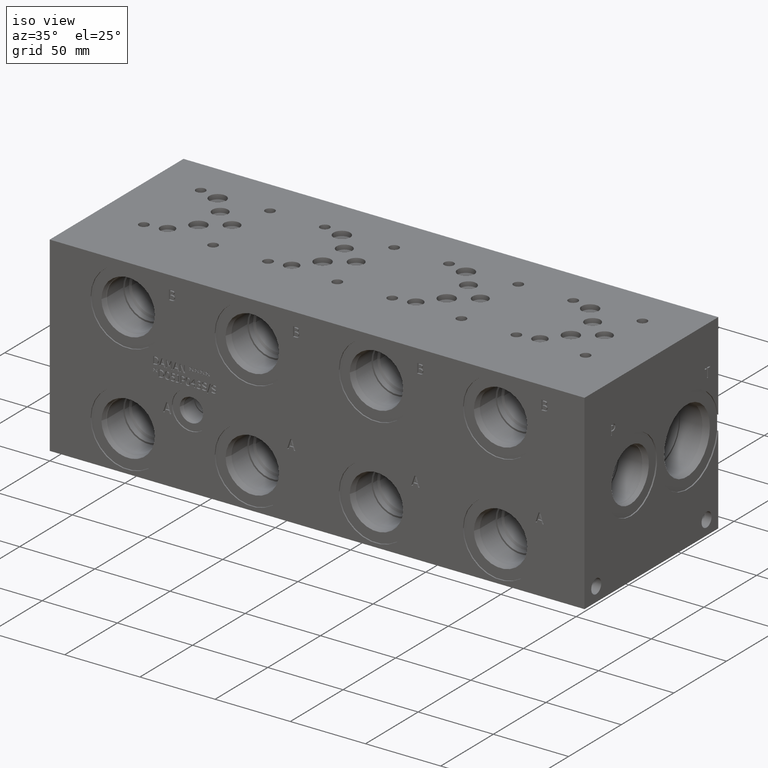
[diagram: clean part render]
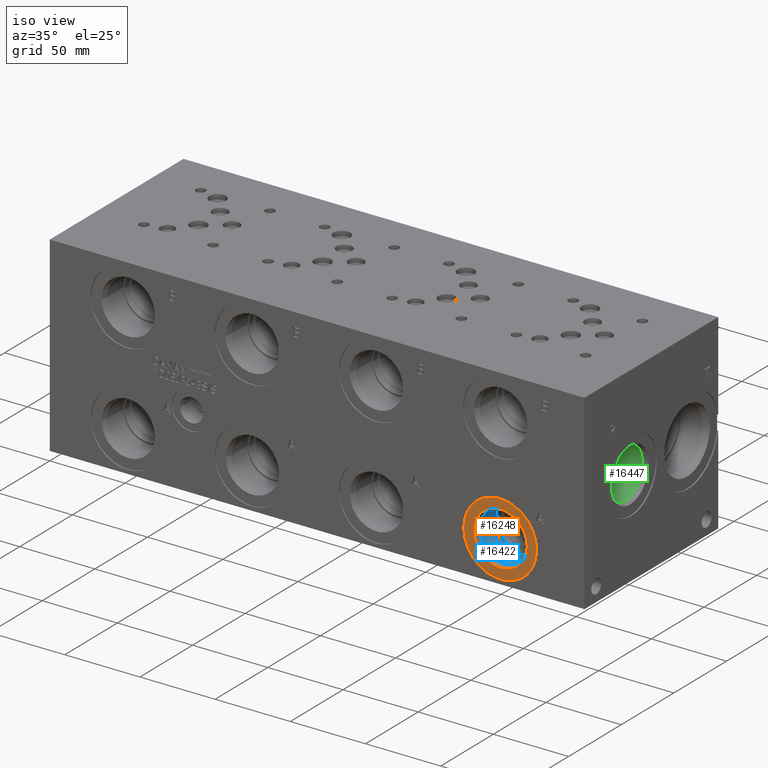
[diagram: same view with three faces highlighted in distinct colors, each labeled with its STEP entity id]
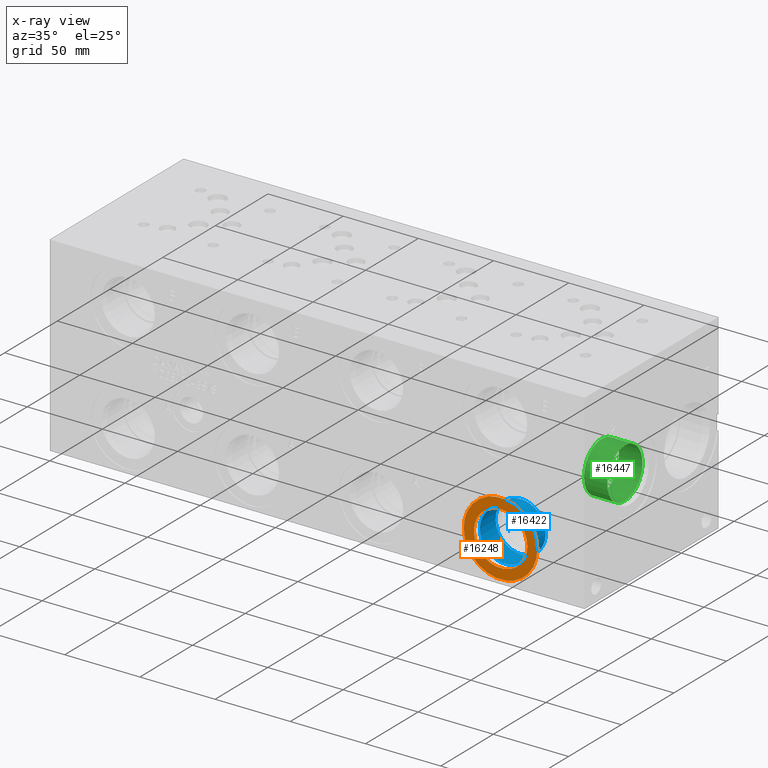
[diagram: x-ray of the same camera — body ghosted, the three highlighted faces saturated]
A machine part, iso view with three faces highlighted in distinct colors.
The next image is the same camera in x-ray (body ghosted, the three faces saturated) — at least one of them is partly hidden behind the body in this view.
Their STEP definitions:

[orange] entity #16248 — the highlighted planar face has unit normal (0, -1, 0).
#586=CIRCLE('',#17075,24.4856);
#587=CIRCLE('',#17076,24.4856);
#588=CIRCLE('',#17077,17.7546);
#1409=FACE_BOUND('',#3062,.T.);
#2116=FACE_OUTER_BOUND('',#3061,.T.);
#3061=EDGE_LOOP('',(#13459,#13460));
#3062=EDGE_LOOP('',(#13461));
#7363=VERTEX_POINT('',#27430);
#7364=VERTEX_POINT('',#27431);
#7365=VERTEX_POINT('',#27434);
#9506=EDGE_CURVE('',#7363,#7364,#586,.T.);
#9507=EDGE_CURVE('',#7364,#7363,#587,.T.);
#9508=EDGE_CURVE('',#7365,#7365,#588,.T.);
#13459=ORIENTED_EDGE('',*,*,#9506,.T.);
#13460=ORIENTED_EDGE('',*,*,#9507,.T.);
#13461=ORIENTED_EDGE('',*,*,#9508,.F.);
#15030=PLANE('',#17074);
#16248=ADVANCED_FACE('',(#2116,#1409),#15030,.T.);
#17074=AXIS2_PLACEMENT_3D('',#27429,#20047,#20048);
#17075=AXIS2_PLACEMENT_3D('',#27432,#20049,#20050);
#17076=AXIS2_PLACEMENT_3D('',#27433,#20051,#20052);
#17077=AXIS2_PLACEMENT_3D('',#27435,#20053,#20054);
#20047=DIRECTION('center_axis',(0.,-1.,0.));
#20048=DIRECTION('ref_axis',(1.,0.,0.));
#20049=DIRECTION('center_axis',(0.,-1.,0.));
#20050=DIRECTION('ref_axis',(1.,0.,0.));
#20051=DIRECTION('center_axis',(0.,-1.,0.));
#20052=DIRECTION('ref_axis',(1.,0.,0.));
#20053=DIRECTION('center_axis',(0.,-1.,0.));
#20054=DIRECTION('ref_axis',(1.,0.,0.));
#27429=CARTESIAN_POINT('Origin',(299.2374,0.7874,26.9875));
#27430=CARTESIAN_POINT('',(323.723,0.7874,26.9875));
#27431=CARTESIAN_POINT('',(274.7518,0.7874,26.9875));
#27432=CARTESIAN_POINT('Origin',(299.2374,0.7874,26.9875));
#27433=CARTESIAN_POINT('Origin',(299.2374,0.7874,26.9875));
#27434=CARTESIAN_POINT('',(281.4828,0.7874,26.9875));
#27435=CARTESIAN_POINT('Origin',(299.2374,0.7874,26.9875));

[blue] entity #16422 — the highlighted cylindrical surface (bore or boss wall) has radius 16.67 mm, axis along (0, -1, 0).
#236=CYLINDRICAL_SURFACE('',#17537,16.67);
#584=CIRCLE('',#17071,16.67);
#872=CIRCLE('',#17534,16.67);
#873=CIRCLE('',#17535,16.67);
#2290=FACE_OUTER_BOUND('',#3265,.T.);
#3265=EDGE_LOOP('',(#14272,#14273,#14274,#14275,#14276));
#4731=LINE('',#28368,#6142);
#6142=VECTOR('',#21119,16.67);
#7360=VERTEX_POINT('',#27421);
#7691=VERTEX_POINT('',#28361);
#7692=VERTEX_POINT('',#28362);
#9503=EDGE_CURVE('',#7360,#7360,#584,.T.);
#9936=EDGE_CURVE('',#7691,#7692,#872,.T.);
#9937=EDGE_CURVE('',#7692,#7691,#873,.T.);
#9939=EDGE_CURVE('',#7360,#7692,#4731,.T.);
#14272=ORIENTED_EDGE('',*,*,#9503,.T.);
#14273=ORIENTED_EDGE('',*,*,#9939,.T.);
#14274=ORIENTED_EDGE('',*,*,#9936,.F.);
#14275=ORIENTED_EDGE('',*,*,#9937,.F.);
#14276=ORIENTED_EDGE('',*,*,#9939,.F.);
#16422=ADVANCED_FACE('',(#2290),#236,.F.);
#17071=AXIS2_PLACEMENT_3D('',#27423,#20040,#20041);
#17534=AXIS2_PLACEMENT_3D('',#28363,#21111,#21112);
#17535=AXIS2_PLACEMENT_3D('',#28364,#21113,#21114);
#17537=AXIS2_PLACEMENT_3D('',#28367,#21117,#21118);
#20040=DIRECTION('center_axis',(0.,-1.,0.));
#20041=DIRECTION('ref_axis',(1.,0.,0.));
#21111=DIRECTION('center_axis',(0.,-1.,0.));
#21112=DIRECTION('ref_axis',(1.,0.,0.));
#21113=DIRECTION('center_axis',(0.,-1.,0.));
#21114=DIRECTION('ref_axis',(1.,0.,0.));
#21117=DIRECTION('center_axis',(0.,-1.,0.));
#21118=DIRECTION('ref_axis',(1.,0.,0.));
#21119=DIRECTION('',(0.,1.,0.));
#27421=CARTESIAN_POINT('',(282.5674,4.8427123058892,26.9875));
#27423=CARTESIAN_POINT('Origin',(299.2374,4.8427123058892,26.9875));
#28361=CARTESIAN_POINT('',(315.9074,19.8374,26.9875));
#28362=CARTESIAN_POINT('',(282.5674,19.8374,26.9875));
#28363=CARTESIAN_POINT('Origin',(299.2374,19.8374,26.9875));
#28364=CARTESIAN_POINT('Origin',(299.2374,19.8374,26.9875));
#28367=CARTESIAN_POINT('Origin',(299.2374,9.9187,26.9875));
#28368=CARTESIAN_POINT('',(282.5674,9.9187,26.9875));

[green] entity #16447 — the highlighted cylindrical surface (bore or boss wall) has radius 16.67 mm, axis along (1, 0, 0).
#247=CYLINDRICAL_SURFACE('',#17597,16.67);
#907=CIRCLE('',#17594,16.67);
#908=CIRCLE('',#17595,16.67);
#910=CIRCLE('',#17598,16.67);
#911=CIRCLE('',#17599,16.67);
#2315=FACE_OUTER_BOUND('',#3294,.T.);
#3294=EDGE_LOOP('',(#14390,#14391,#14392,#14393,#14394,#14395));
#4752=LINE('',#28489,#6163);
#6163=VECTOR('',#21262,16.67);
#7728=VERTEX_POINT('',#28479);
#7729=VERTEX_POINT('',#28480);
#7731=VERTEX_POINT('',#28486);
#7732=VERTEX_POINT('',#28487);
#9992=EDGE_CURVE('',#7728,#7729,#907,.T.);
#9993=EDGE_CURVE('',#7729,#7728,#908,.T.);
#9995=EDGE_CURVE('',#7731,#7732,#910,.T.);
#9996=EDGE_CURVE('',#7731,#7729,#4752,.T.);
#9997=EDGE_CURVE('',#7732,#7731,#911,.T.);
#14390=ORIENTED_EDGE('',*,*,#9995,.F.);
#14391=ORIENTED_EDGE('',*,*,#9996,.T.);
#14392=ORIENTED_EDGE('',*,*,#9992,.F.);
#14393=ORIENTED_EDGE('',*,*,#9993,.F.);
#14394=ORIENTED_EDGE('',*,*,#9996,.F.);
#14395=ORIENTED_EDGE('',*,*,#9997,.F.);
#16447=ADVANCED_FACE('',(#2315),#247,.F.);
#17594=AXIS2_PLACEMENT_3D('',#28481,#21252,#21253);
#17595=AXIS2_PLACEMENT_3D('',#28482,#21254,#21255);
#17597=AXIS2_PLACEMENT_3D('',#28485,#21258,#21259);
#17598=AXIS2_PLACEMENT_3D('',#28488,#21260,#21261);
#17599=AXIS2_PLACEMENT_3D('',#28490,#21263,#21264);
#21252=DIRECTION('center_axis',(1.,0.,0.));
#21253=DIRECTION('ref_axis',(0.,1.,0.));
#21254=DIRECTION('center_axis',(1.,0.,0.));
#21255=DIRECTION('ref_axis',(0.,1.,0.));
#21258=DIRECTION('center_axis',(1.,0.,0.));
#21259=DIRECTION('ref_axis',(0.,1.,0.));
#21260=DIRECTION('center_axis',(-1.,0.,0.));
#21261=DIRECTION('ref_axis',(0.,1.,0.));
#21262=DIRECTION('',(-1.,0.,0.));
#21263=DIRECTION('center_axis',(-1.,0.,0.));
#21264=DIRECTION('ref_axis',(0.,1.,0.));
#28479=CARTESIAN_POINT('',(335.7626,61.12,63.5));
#28480=CARTESIAN_POINT('',(335.7626,27.78,63.5));
#28481=CARTESIAN_POINT('Origin',(335.7626,44.45,63.5));
#28482=CARTESIAN_POINT('Origin',(335.7626,44.45,63.5));
#28485=CARTESIAN_POINT('Origin',(345.6813,44.45,63.5));
#28486=CARTESIAN_POINT('',(351.3277,27.78,63.5));
#28487=CARTESIAN_POINT('',(351.3277,44.45,80.17));
#28488=CARTESIAN_POINT('Origin',(351.3277,44.45,63.5));
#28489=CARTESIAN_POINT('',(345.6813,27.78,63.5));
#28490=CARTESIAN_POINT('Origin',(351.3277,44.45,63.5));